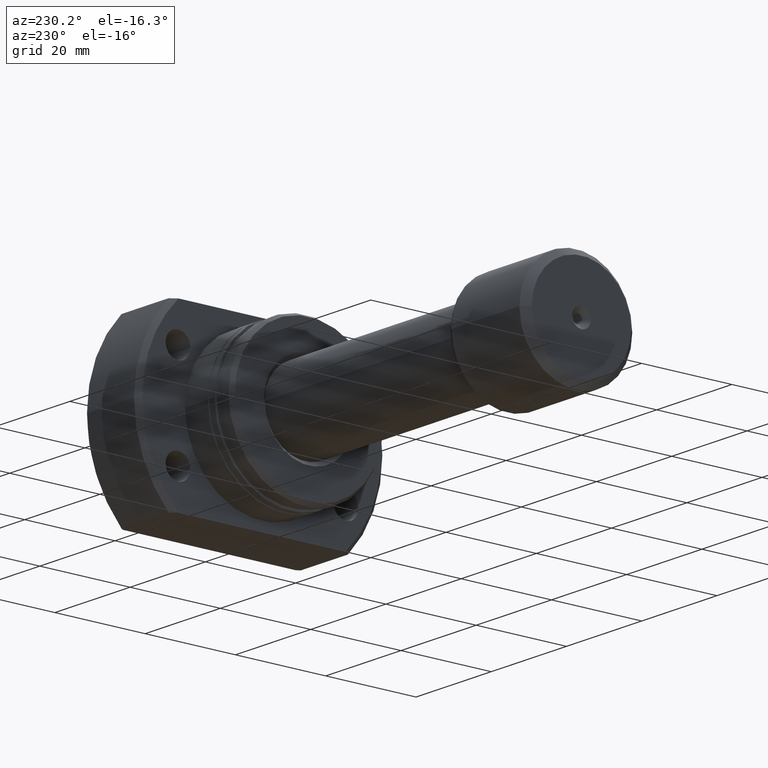
[diagram: clean part render]
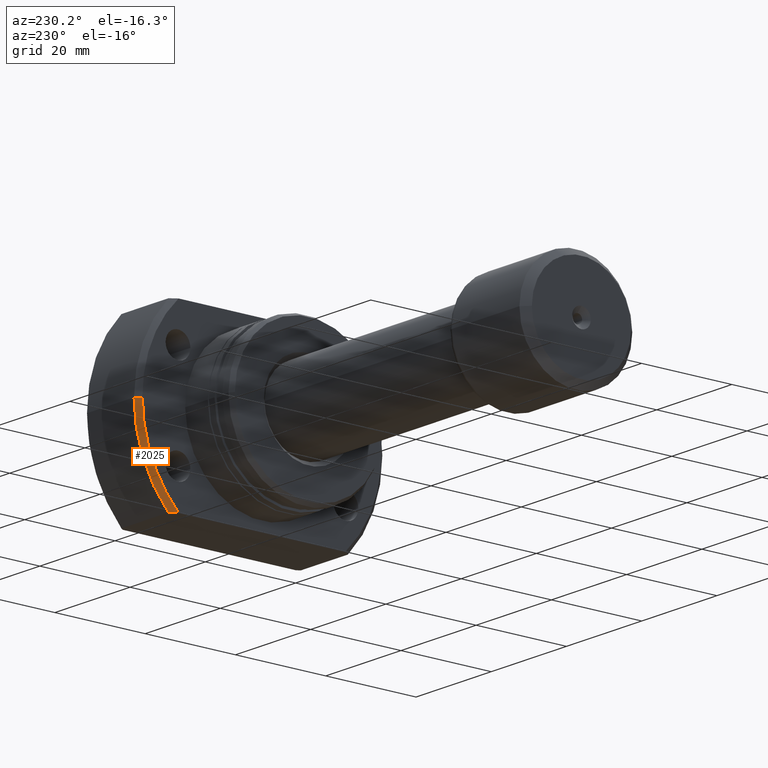
[diagram: same view with one face highlighted and labeled with its STEP entity id]
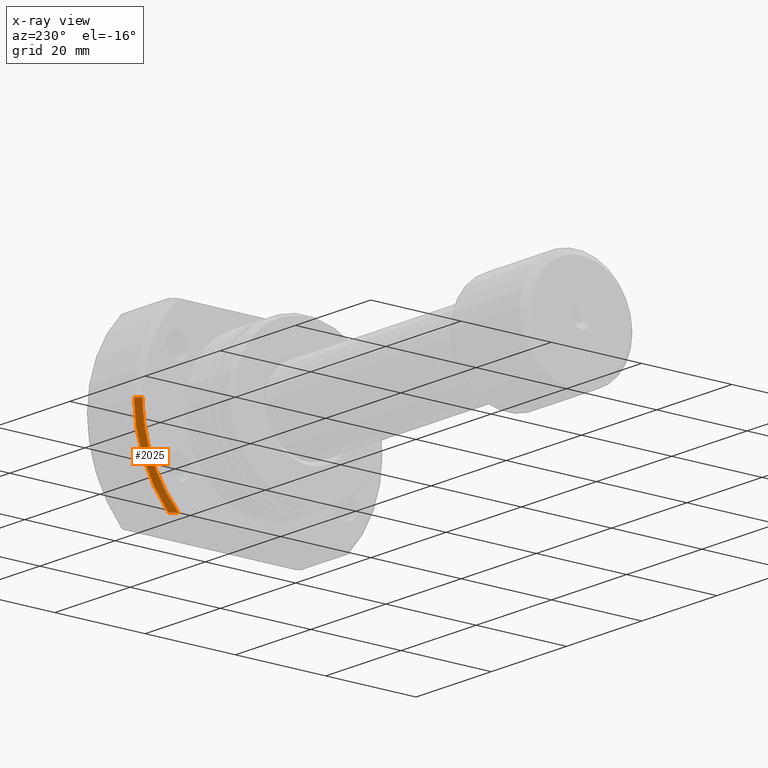
[diagram: x-ray of the same camera — body ghosted, the highlighted face saturated]
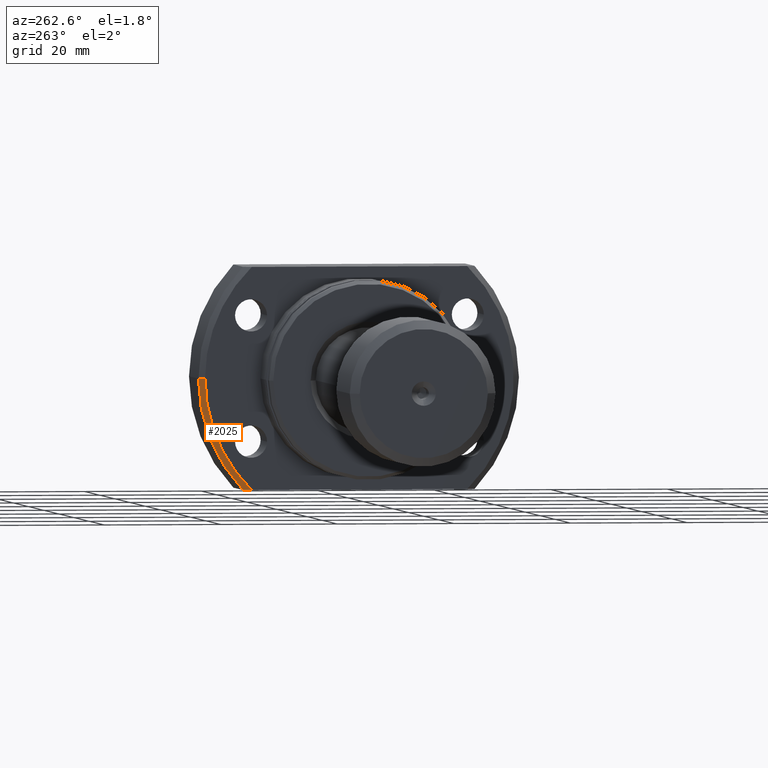
[diagram: same view with one face highlighted and labeled with its STEP entity id]
A machine part, auxiliary view. The second image highlights one B-rep face of the part: STEP entity #2025.
The next image is the same camera in x-ray: the body ghosted, the highlighted face saturated — about 0% of this face is hidden behind the body in this view.
A second angle (auxiliary view) of the same face is appended — the face is thin or edge-on in the first view.
In plain terms, the highlighted conical surface has half-angle 45 deg.
Its self-contained STEP definition (entity closure, byte-faithful):
#93 = CONICAL_SURFACE ( 'NONE', #1958, 26.49999999999993250, 0.7853981633974447263 ) ;
#111 = CARTESIAN_POINT ( 'NONE',  ( 12.50000000000000355, 18.47295320191106072, -19.00000000000001066 ) ) ;
#600 = VECTOR ( 'NONE', #3043, 1000.000000000000000 ) ;
#623 = EDGE_CURVE ( 'NONE', #1623, #1066, #1333, .T. ) ;
#721 = DIRECTION ( 'NONE',  ( 0.000000000000000000, 1.000000000000000000, 0.000000000000000000 ) ) ;
#823 = EDGE_CURVE ( 'NONE', #2107, #1066, #2044, .T. ) ;
#832 = CARTESIAN_POINT ( 'NONE',  ( 13.49999999999998757, 19.88089535207129543, -18.99999999999999645 ) ) ;
#1020 = CARTESIAN_POINT ( 'NONE',  ( 13.49999999999999112, 27.49999999999991473, 0.000000000000000000 ) ) ;
#1066 = VERTEX_POINT ( 'NONE', #1020 ) ;
#1197 = EDGE_LOOP ( 'NONE', ( #1223, #3112, #2755, #1509 ) ) ;
#1223 = ORIENTED_EDGE ( 'NONE', *, *, #2609, .T. ) ;
#1238 = AXIS2_PLACEMENT_3D ( 'NONE', #2140, #2071, #3140 ) ;
#1326 = VERTEX_POINT ( 'NONE', #111 ) ;
#1333 = LINE ( 'NONE', #1561, #600 ) ;
#1398 = B_SPLINE_CURVE_WITH_KNOTS ( 'NONE', 3,
 ( #2171, #3216, #2904, #1486 ),
 .UNSPECIFIED., .F., .F.,
 ( 4, 4 ),
 ( 0.03128279945209441748, 0.03301205973984314840 ),
 .UNSPECIFIED. ) ;
#1486 = CARTESIAN_POINT ( 'NONE',  ( 12.50000000000000355, 18.47295320191106072, -19.00000000000001066 ) ) ;
#1509 = ORIENTED_EDGE ( 'NONE', *, *, #1827, .T. ) ;
#1561 = CARTESIAN_POINT ( 'NONE',  ( 12.50000000000000355, 26.49999999999993250, 0.000000000000000000 ) ) ;
#1612 = DIRECTION ( 'NONE',  ( 1.000000000000000000, 9.242617352055502386E-18, -0.000000000000000000 ) ) ;
#1623 = VERTEX_POINT ( 'NONE', #2804 ) ;
#1695 = DIRECTION ( 'NONE',  ( 1.000000000000000000, 9.242617352055502386E-18, -0.000000000000000000 ) ) ;
#1827 = EDGE_CURVE ( 'NONE', #2107, #1326, #1398, .T. ) ;
#1835 = AXIS2_PLACEMENT_3D ( 'NONE', #3135, #1695, #721 ) ;
#1844 = DIRECTION ( 'NONE',  ( 0.000000000000000000, 1.000000000000000000, 0.000000000000000000 ) ) ;
#1958 = AXIS2_PLACEMENT_3D ( 'NONE', #2828, #1612, #1844 ) ;
#2025 = ADVANCED_FACE ( 'NONE', ( #2113 ), #93, .T. ) ;
#2044 = CIRCLE ( 'NONE', #1835, 27.49999999999991473 ) ;
#2071 = DIRECTION ( 'NONE',  ( 1.000000000000000000, 9.242617352055502386E-18, -0.000000000000000000 ) ) ;
#2107 = VERTEX_POINT ( 'NONE', #832 ) ;
#2113 = FACE_OUTER_BOUND ( 'NONE', #1197, .T. ) ;
#2140 = CARTESIAN_POINT ( 'NONE',  ( 12.50000000000000355, 1.155327169006938207E-16, 0.000000000000000000 ) ) ;
#2171 = CARTESIAN_POINT ( 'NONE',  ( 13.49999999999998757, 19.88089535207129543, -18.99999999999999645 ) ) ;
#2609 = EDGE_CURVE ( 'NONE', #1326, #1623, #3115, .T. ) ;
#2755 = ORIENTED_EDGE ( 'NONE', *, *, #823, .F. ) ;
#2804 = CARTESIAN_POINT ( 'NONE',  ( 12.50000000000000355, 26.49999999999993250, 0.000000000000000000 ) ) ;
#2828 = CARTESIAN_POINT ( 'NONE',  ( 12.50000000000000355, 1.155327169006938207E-16, 0.000000000000000000 ) ) ;
#2904 = CARTESIAN_POINT ( 'NONE',  ( 12.82923531929442440, 18.94525104546319128, -19.00000000000001066 ) ) ;
#3043 = DIRECTION ( 'NONE',  ( 0.7071067811865500152, 0.7071067811865450192, 0.000000000000000000 ) ) ;
#3112 = ORIENTED_EDGE ( 'NONE', *, *, #623, .T. ) ;
#3115 = CIRCLE ( 'NONE', #1238, 26.49999999999993250 ) ;
#3135 = CARTESIAN_POINT ( 'NONE',  ( 13.49999999999999112, 1.247753342527491952E-16, 0.000000000000000000 ) ) ;
#3140 = DIRECTION ( 'NONE',  ( 0.000000000000000000, 1.000000000000000000, 0.000000000000000000 ) ) ;
#3216 = CARTESIAN_POINT ( 'NONE',  ( 13.16276636410033696, 19.41442114037127098, -19.00000000000001066 ) ) ;